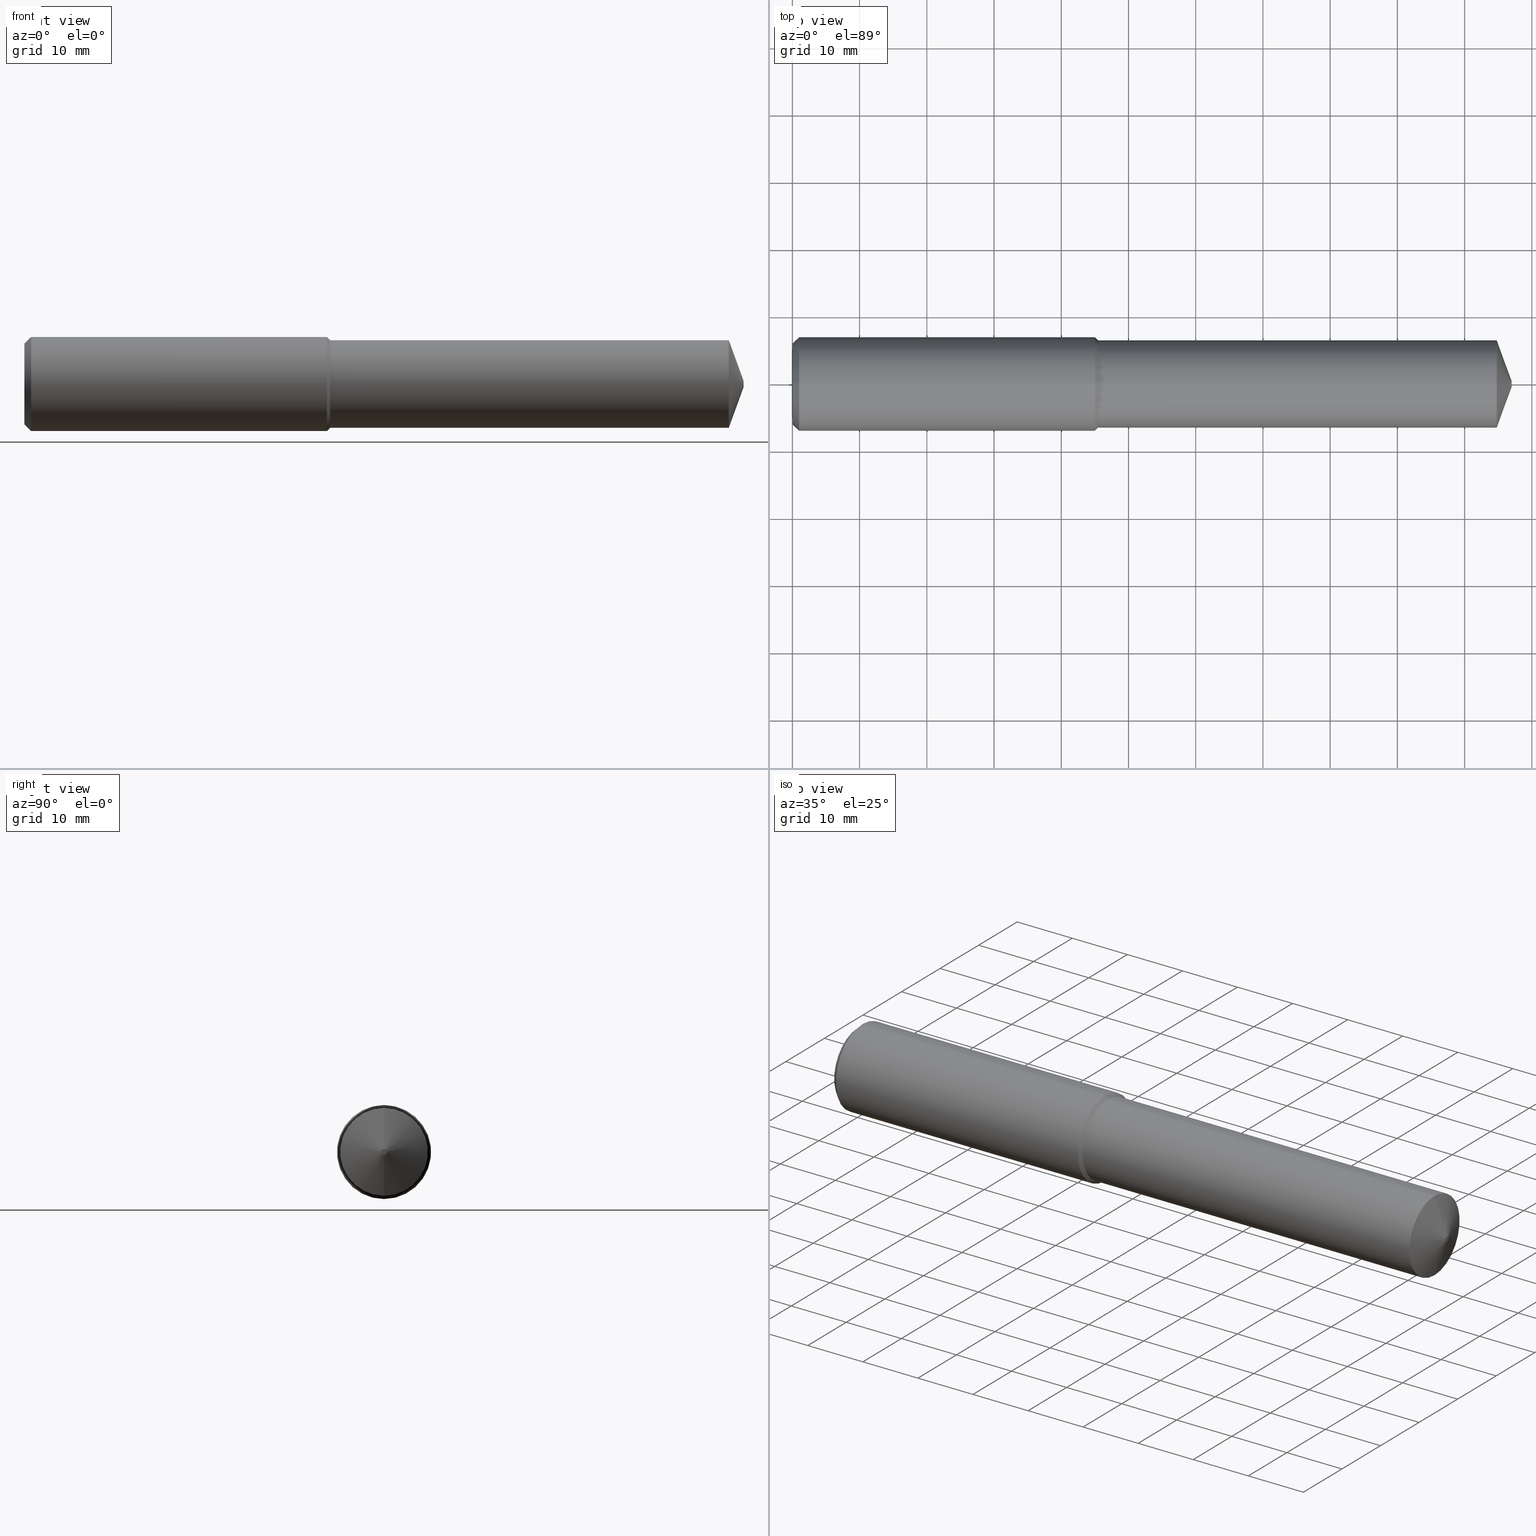
[diagram: canonical four-view strip — front | top / right | iso, engineering-drawing reading convention]
A machine part, canonical four-view strip (front | top / right | iso — engineering-drawing reading convention). The complete STEP part file that produces these views, byte-faithful:
ISO-10303-21;
HEADER;
FILE_DESCRIPTION (( 'STEP AP203' ),
    '1' );
FILE_NAME ('407020-DFX3-513A.STEP',
    '2024-10-03T14:28:50',
    ( '' ),
    ( '' ),
    'SwSTEP 2.0',
    'SolidWorks 2024',
    '' );
FILE_SCHEMA (( 'CONFIG_CONTROL_DESIGN' ));
ENDSEC;

DATA;
#1 = DIRECTION ( 'NONE',  ( 1.000000000000000000, -0.000000000000000000, -0.000000000000000000 ) ) ;
#2 = EDGE_CURVE ( 'NONE', #254, #260, #84, .T. ) ;
#3 = AXIS2_PLACEMENT_3D ( 'NONE', #208, #8, #236 ) ;
#4 = CARTESIAN_POINT ( 'NONE',  ( 0.03937007874015747977, 0.000000000000000000, 0.000000000000000000 ) ) ;
#5 = CIRCLE ( 'NONE', #148, 0.2755905511811025943 ) ;
#6 = FACE_OUTER_BOUND ( 'NONE', #287, .T. ) ;
#7 = CIRCLE ( 'NONE', #61, 0.2362204724409449341 ) ;
#8 = DIRECTION ( 'NONE',  ( -1.000000000000000000, 0.000000000000000000, 0.000000000000000000 ) ) ;
#9 = APPROVAL ( #107, 'UNSPECIFIED' ) ;
#10 = DIRECTION ( 'NONE',  ( -1.000000000000000000, 0.000000000000000000, 0.000000000000000000 ) ) ;
#11 = CARTESIAN_POINT ( 'NONE',  ( 1.790744094488189164, 0.000000000000000000, -0.2565000000000002278 ) ) ;
#12 = ADVANCED_FACE ( 'NONE', ( #172 ), #17, .T. ) ;
#13 = CIRCLE ( 'NONE', #285, 0.2755905511811023723 ) ;
#14 = AXIS2_PLACEMENT_3D ( 'NONE', #243, #369, #240 ) ;
#15 = DIRECTION ( 'NONE',  ( 0.000000000000000000, 0.000000000000000000, -1.000000000000000000 ) ) ;
#16 = DIRECTION ( 'NONE',  ( 1.000000000000000000, -0.000000000000000000, -0.000000000000000000 ) ) ;
#17 = CONICAL_SURFACE ( 'NONE', #337, 0.2565000000000002278, 0.7853981633974447263 ) ;
#18 = UNCERTAINTY_MEASURE_WITH_UNIT (LENGTH_MEASURE( 1.000000000000000082E-05 ), #276, 'distance_accuracy_value', 'NONE');
#19 = CARTESIAN_POINT ( 'NONE',  ( 1.771653543307086576, 0.000000000000000000, 0.2755905511811025943 ) ) ;
#20 = DIRECTION ( 'NONE',  ( 0.000000000000000000, 0.000000000000000000, 1.000000000000000000 ) ) ;
#21 = ORIENTED_EDGE ( 'NONE', *, *, #118, .F. ) ;
#22 = COORDINATED_UNIVERSAL_TIME_OFFSET ( 8, 0, .BEHIND. ) ;
#23 = CARTESIAN_POINT ( 'NONE',  ( 0.000000000000000000, 0.000000000000000000, 0.000000000000000000 ) ) ;
#24 = CC_DESIGN_APPROVAL ( #9, ( #180 ) ) ;
#25 = ORIENTED_EDGE ( 'NONE', *, *, #258, .F. ) ;
#26 = APPROVAL_ROLE ( '' ) ;
#27 = ORIENTED_EDGE ( 'NONE', *, *, #300, .F. ) ;
#28 = ORIENTED_EDGE ( 'NONE', *, *, #355, .F. ) ;
#29 = ORIENTED_EDGE ( 'NONE', *, *, #258, .T. ) ;
#30 = EDGE_LOOP ( 'NONE', ( #25, #28, #324, #113 ) ) ;
#31 = CIRCLE ( 'NONE', #269, 0.2565000000000002278 ) ;
#32 = ADVANCED_FACE ( 'NONE', ( #263 ), #235, .T. ) ;
#33 = DATE_AND_TIME ( #328, #294 ) ;
#34 = CARTESIAN_POINT ( 'NONE',  ( 0.03937007874015747977, 3.375010863791918991E-17, 0.2755905511811023723 ) ) ;
#35 = CARTESIAN_POINT ( 'NONE',  ( -0.03808593750000075634, 0.000000000000000000, 0.000000000000000000 ) ) ;
#36 = CC_DESIGN_APPROVAL ( #141, ( #241 ) ) ;
#37 = DIRECTION ( 'NONE',  ( 1.000000000000000000, -0.000000000000000000, -0.000000000000000000 ) ) ;
#38 = CARTESIAN_POINT ( 'NONE',  ( 1.790744094488189164, 3.141219039812965114E-17, 0.2565000000000002278 ) ) ;
#39 = DIRECTION ( 'NONE',  ( -1.000000000000000000, 0.000000000000000000, 0.000000000000000000 ) ) ;
#40 = DIRECTION ( 'NONE',  ( 0.000000000000000000, 0.000000000000000000, -1.000000000000000000 ) ) ;
#41 = AXIS2_PLACEMENT_3D ( 'NONE', #361, #1, #178 ) ;
#42 = DIRECTION ( 'NONE',  ( 1.000000000000000000, -0.000000000000000000, -0.000000000000000000 ) ) ;
#43 = APPROVAL ( #194, 'UNSPECIFIED' ) ;
#44 = CARTESIAN_POINT ( 'NONE',  ( 4.212598425196850016, 0.000000000000000000, 0.01750000000000052208 ) ) ;
#45 = AXIS2_PLACEMENT_3D ( 'NONE', #262, #149, #64 ) ;
#46 = DIRECTION ( 'NONE',  ( -0.7071067811865500152, 0.000000000000000000, 0.7071067811865450192 ) ) ;
#47 = LINE ( 'NONE', #102, #223 ) ;
#48 = DATE_AND_TIME ( #310, #278 ) ;
#49 = VERTEX_POINT ( 'NONE', #206 ) ;
#50 = AXIS2_PLACEMENT_3D ( 'NONE', #293, #153, #238 ) ;
#51 = ORIENTED_EDGE ( 'NONE', *, *, #300, .T. ) ;
#52 = PERSON_AND_ORGANIZATION_ROLE ( 'creator' ) ;
#53 = VERTEX_POINT ( 'NONE', #34 ) ;
#54 = AXIS2_PLACEMENT_3D ( 'NONE', #213, #309, #74 ) ;
#55 = PERSON_AND_ORGANIZATION ( #333, #132 ) ;
#56 = DIRECTION ( 'NONE',  ( 0.7071067811865477948, 0.000000000000000000, -0.7071067811865472397 ) ) ;
#57 = CIRCLE ( 'NONE', #45, 0.2565000000000005054 ) ;
#58 = EDGE_LOOP ( 'NONE', ( #21, #352, #317, #140 ) ) ;
#59 = EDGE_CURVE ( 'NONE', #49, #168, #100, .T. ) ;
#60 = FACE_OUTER_BOUND ( 'NONE', #283, .T. ) ;
#61 = AXIS2_PLACEMENT_3D ( 'NONE', #189, #306, #268 ) ;
#62 = CARTESIAN_POINT ( 'NONE',  ( 1.790744094488189164, 3.141219039812963882E-17, -0.2565000000000002278 ) ) ;
#63 = LINE ( 'NONE', #237, #273 ) ;
#64 = DIRECTION ( 'NONE',  ( 0.000000000000000000, 0.000000000000000000, -1.000000000000000000 ) ) ;
#65 = DIRECTION ( 'NONE',  ( 1.000000000000000000, -0.000000000000000000, -0.000000000000000000 ) ) ;
#66 = CARTESIAN_POINT ( 'NONE',  ( 1.790744094488189164, 0.000000000000000000, 0.000000000000000000 ) ) ;
#67 = ADVANCED_FACE ( 'NONE', ( #360 ), #297, .T. ) ;
#68 = AXIS2_PLACEMENT_3D ( 'NONE', #23, #83, #166 ) ;
#69 = EDGE_CURVE ( 'NONE', #114, #49, #264, .T. ) ;
#70 = CARTESIAN_POINT ( 'NONE',  ( 4.268512490100411279E-18, 0.000000000000000000, 0.000000000000000000 ) ) ;
#71 = DIRECTION ( 'NONE',  ( 1.000000000000000000, -0.000000000000000000, -0.000000000000000000 ) ) ;
#72 = AXIS2_PLACEMENT_3D ( 'NONE', #75, #127, #20 ) ;
#73 = APPROVAL_PERSON_ORGANIZATION ( #55, #43, #200 ) ;
#74 = DIRECTION ( 'NONE',  ( 0.000000000000000000, 0.000000000000000000, 1.000000000000000000 ) ) ;
#75 = CARTESIAN_POINT ( 'NONE',  ( 4.212598425196850016, 0.000000000000000000, 0.000000000000000000 ) ) ;
#76 = EDGE_CURVE ( 'NONE', #257, #49, #202, .T. ) ;
#77 = CALENDAR_DATE ( 2024, 3, 10 ) ;
#78 = ORIENTED_EDGE ( 'NONE', *, *, #87, .F. ) ;
#79 = APPLICATION_PROTOCOL_DEFINITION ( 'international standard', 'config_control_design', 1994, #163 ) ;
#80 = ORIENTED_EDGE ( 'NONE', *, *, #325, .T. ) ;
#81 = PERSON_AND_ORGANIZATION ( #333, #132 ) ;
#82 = EDGE_LOOP ( 'NONE', ( #111, #174, #134, #350 ) ) ;
#83 = DIRECTION ( 'NONE',  ( 0.000000000000000000, 0.000000000000000000, 1.000000000000000000 ) ) ;
#84 = LINE ( 'NONE', #321, #207 ) ;
#85 = ORIENTED_EDGE ( 'NONE', *, *, #69, .T. ) ;
#86 = PERSON_AND_ORGANIZATION_ROLE ( 'design_supplier' ) ;
#87 = EDGE_CURVE ( 'NONE', #168, #49, #57, .T. ) ;
#88 = EDGE_LOOP ( 'NONE', ( #229, #51 ) ) ;
#89 = AXIS2_PLACEMENT_3D ( 'NONE', #151, #37, #94 ) ;
#90 = DIRECTION ( 'NONE',  ( 1.000000000000000000, -0.000000000000000000, -0.000000000000000000 ) ) ;
#91 = DIRECTION ( 'NONE',  ( 0.000000000000000000, 0.000000000000000000, -1.000000000000000000 ) ) ;
#92 = AXIS2_PLACEMENT_3D ( 'NONE', #183, #39, #233 ) ;
#93 = CARTESIAN_POINT ( 'NONE',  ( 4.212598425196850016, 0.000000000000000000, 0.01750000000000052208 ) ) ;
#94 = DIRECTION ( 'NONE',  ( 0.000000000000000000, 0.000000000000000000, -1.000000000000000000 ) ) ;
#95 = FACE_OUTER_BOUND ( 'NONE', #311, .T. ) ;
#96 = ADVANCED_FACE ( 'NONE', ( #205 ), #261, .T. ) ;
#97 = DIRECTION ( 'NONE',  ( 0.000000000000000000, 0.000000000000000000, -1.000000000000000000 ) ) ;
#98 = EDGE_CURVE ( 'NONE', #260, #231, #63, .T. ) ;
#99 = DIRECTION ( 'NONE',  ( 0.000000000000000000, 0.000000000000000000, -1.000000000000000000 ) ) ;
#100 = CIRCLE ( 'NONE', #89, 0.2565000000000005054 ) ;
#101 = FACE_OUTER_BOUND ( 'NONE', #82, .T. ) ;
#102 = CARTESIAN_POINT ( 'NONE',  ( -0.03808593750000075634, 0.000000000000000000, -0.2565000000000003944 ) ) ;
#103 = DIRECTION ( 'NONE',  ( 1.000000000000000000, -0.000000000000000000, -0.000000000000000000 ) ) ;
#104 = VECTOR ( 'NONE', #152, 39.37007874015748854 ) ;
#105 = APPLICATION_PROTOCOL_DEFINITION ( 'international standard', 'config_control_design', 1994, #126 ) ;
#106 = ORIENTED_EDGE ( 'NONE', *, *, #313, .F. ) ;
#107 = APPROVAL_STATUS ( 'not_yet_approved' ) ;
#108 = ORIENTED_EDGE ( 'NONE', *, *, #371, .T. ) ;
#109 = CC_DESIGN_PERSON_AND_ORGANIZATION_ASSIGNMENT ( #286, #224, ( #234 ) ) ;
#110 = APPROVAL_DATE_TIME ( #377, #141 ) ;
#111 = ORIENTED_EDGE ( 'NONE', *, *, #248, .T. ) ;
#112 =( LENGTH_UNIT ( ) NAMED_UNIT ( * ) SI_UNIT ( $, .METRE. ) );
#113 = ORIENTED_EDGE ( 'NONE', *, *, #59, .T. ) ;
#114 = VERTEX_POINT ( 'NONE', #38 ) ;
#115 = PERSON_AND_ORGANIZATION ( #333, #132 ) ;
#116 = ORIENTED_EDGE ( 'NONE', *, *, #98, .F. ) ;
#117 = DIRECTION ( 'NONE',  ( 1.000000000000000000, -0.000000000000000000, -0.000000000000000000 ) ) ;
#118 = EDGE_CURVE ( 'NONE', #345, #231, #357, .T. ) ;
#119 = DIRECTION ( 'NONE',  ( 1.000000000000000000, -0.000000000000000000, -0.000000000000000000 ) ) ;
#120 = DIRECTION ( 'NONE',  ( 0.000000000000000000, 0.000000000000000000, -1.000000000000000000 ) ) ;
#121 = CIRCLE ( 'NONE', #169, 0.2755905511811023723 ) ;
#122 = DIRECTION ( 'NONE',  ( 0.000000000000000000, 0.000000000000000000, -1.000000000000000000 ) ) ;
#123 = DIRECTION ( 'NONE',  ( 1.000000000000000000, -0.000000000000000000, -0.000000000000000000 ) ) ;
#124 = ADVANCED_FACE ( 'NONE', ( #6 ), #335, .T. ) ;
#125 = DIRECTION ( 'NONE',  ( 1.000000000000000000, -0.000000000000000000, -0.000000000000000000 ) ) ;
#126 = APPLICATION_CONTEXT ( 'configuration controlled 3d designs of mechanical parts and assemblies' ) ;
#127 = DIRECTION ( 'NONE',  ( -1.000000000000000000, 0.000000000000000000, 0.000000000000000000 ) ) ;
#128 = LINE ( 'NONE', #158, #329 ) ;
#129 = LINE ( 'NONE', #368, #156 ) ;
#130 = DIRECTION ( 'NONE',  ( 1.000000000000000000, -0.000000000000000000, -0.000000000000000000 ) ) ;
#131 = ORIENTED_EDGE ( 'NONE', *, *, #334, .T. ) ;
#132 = ORGANIZATION ( 'UNSPECIFIED', 'UNSPECIFIED', '' ) ;
#133 = EDGE_CURVE ( 'NONE', #345, #114, #214, .T. ) ;
#134 = ORIENTED_EDGE ( 'NONE', *, *, #203, .F. ) ;
#135 = EDGE_CURVE ( 'NONE', #289, #231, #303, .T. ) ;
#136 = AXIS2_PLACEMENT_3D ( 'NONE', #331, #65, #179 ) ;
#137 = CIRCLE ( 'NONE', #165, 0.01750000000000052208 ) ;
#138 = ORIENTED_EDGE ( 'NONE', *, *, #76, .F. ) ;
#139 = DATE_AND_TIME ( #77, #281 ) ;
#140 = ORIENTED_EDGE ( 'NONE', *, *, #135, .T. ) ;
#141 = APPROVAL ( #343, 'UNSPECIFIED' ) ;
#142 = CARTESIAN_POINT ( 'NONE',  ( 1.790744094488189164, 0.000000000000000000, 0.000000000000000000 ) ) ;
#143 = ADVANCED_FACE ( 'NONE', ( #95 ), #222, .T. ) ;
#144 = EDGE_LOOP ( 'NONE', ( #227, #85, #78, #373 ) ) ;
#145 = SHAPE_DEFINITION_REPRESENTATION ( #246, #290 ) ;
#146 = CARTESIAN_POINT ( 'NONE',  ( -0.03808593750000075634, 3.141219039812965731E-17, 0.2565000000000003944 ) ) ;
#147 = CLOSED_SHELL ( 'NONE', ( #232, #124, #143, #209, #212, #67, #32, #239, #184, #12, #96, #176 ) ) ;
#148 = AXIS2_PLACEMENT_3D ( 'NONE', #304, #42, #271 ) ;
#149 = DIRECTION ( 'NONE',  ( 1.000000000000000000, -0.000000000000000000, -0.000000000000000000 ) ) ;
#150 = APPROVAL_PERSON_ORGANIZATION ( #282, #141, #26 ) ;
#151 = CARTESIAN_POINT ( 'NONE',  ( 4.125609539207228948, 0.000000000000000000, 0.000000000000000000 ) ) ;
#152 = DIRECTION ( 'NONE',  ( -0.3420201433256671031, 0.000000000000000000, 0.9396926207859088720 ) ) ;
#153 = DIRECTION ( 'NONE',  ( 1.000000000000000000, 0.000000000000000000, -0.000000000000000000 ) ) ;
#154 = CARTESIAN_POINT ( 'NONE',  ( 4.268512490100411279E-18, 0.000000000000000000, -0.2362204724409449341 ) ) ;
#155 = CONICAL_SURFACE ( 'NONE', #188, 0.2755905511811023723, 0.7853981633974479459 ) ;
#156 = VECTOR ( 'NONE', #46, 39.37007874015748143 ) ;
#157 = VECTOR ( 'NONE', #244, 39.37007874015748143 ) ;
#158 = CARTESIAN_POINT ( 'NONE',  ( 4.212598425196850016, 2.143131898507931930E-18, -0.01750000000000052208 ) ) ;
#159 = FACE_OUTER_BOUND ( 'NONE', #30, .T. ) ;
#160 = CARTESIAN_POINT ( 'NONE',  ( -0.03808593750000075634, 3.375010863791919607E-17, 0.2755905511811024833 ) ) ;
#161 = COORDINATED_UNIVERSAL_TIME_OFFSET ( 8, 0, .BEHIND. ) ;
#162 = EDGE_CURVE ( 'NONE', #53, #260, #13, .T. ) ;
#163 = APPLICATION_CONTEXT ( 'configuration controlled 3d designs of mechanical parts and assemblies' ) ;
#164 = ORIENTED_EDGE ( 'NONE', *, *, #344, .T. ) ;
#165 = AXIS2_PLACEMENT_3D ( 'NONE', #215, #125, #187 ) ;
#166 = DIRECTION ( 'NONE',  ( 1.000000000000000000, 0.000000000000000000, 0.000000000000000000 ) ) ;
#167 = ORIENTED_EDGE ( 'NONE', *, *, #69, .F. ) ;
#168 = VERTEX_POINT ( 'NONE', #175 ) ;
#169 = AXIS2_PLACEMENT_3D ( 'NONE', #216, #342, #339 ) ;
#170 = PERSON_AND_ORGANIZATION ( #333, #132 ) ;
#171 = ORIENTED_EDGE ( 'NONE', *, *, #135, .F. ) ;
#172 = FACE_OUTER_BOUND ( 'NONE', #58, .T. ) ;
#173 = VECTOR ( 'NONE', #359, 39.37007874015748143 ) ;
#174 = ORIENTED_EDGE ( 'NONE', *, *, #267, .T. ) ;
#175 = CARTESIAN_POINT ( 'NONE',  ( 4.125609539207228948, 3.141219039812967579E-17, -0.2565000000000005054 ) ) ;
#176 = ADVANCED_FACE ( 'NONE', ( #60 ), #155, .T. ) ;
#177 = CC_DESIGN_DATE_AND_TIME_ASSIGNMENT ( #230, #351, ( #241 ) ) ;
#178 = DIRECTION ( 'NONE',  ( 0.000000000000000000, 0.000000000000000000, -1.000000000000000000 ) ) ;
#179 = DIRECTION ( 'NONE',  ( 0.000000000000000000, 0.000000000000000000, -1.000000000000000000 ) ) ;
#180 = PRODUCT_DEFINITION_FORMATION_WITH_SPECIFIED_SOURCE ( 'ANY', '', #367, .NOT_KNOWN. ) ;
#181 = MANIFOLD_SOLID_BREP ( 'Body', #147 ) ;
#182 = DIRECTION ( 'NONE',  ( 0.000000000000000000, 0.000000000000000000, 1.000000000000000000 ) ) ;
#183 = CARTESIAN_POINT ( 'NONE',  ( 1.790744094488189164, 0.000000000000000000, 0.000000000000000000 ) ) ;
#184 = ADVANCED_FACE ( 'NONE', ( #330 ), #295, .T. ) ;
#185 = CARTESIAN_POINT ( 'NONE',  ( 4.212598425196850016, 1.677766114831880656E-17, -0.01750000000000052208 ) ) ;
#186 = APPROVAL_PERSON_ORGANIZATION ( #115, #9, #320 ) ;
#187 = DIRECTION ( 'NONE',  ( 0.000000000000000000, 0.000000000000000000, -1.000000000000000000 ) ) ;
#188 = AXIS2_PLACEMENT_3D ( 'NONE', #4, #119, #91 ) ;
#189 = CARTESIAN_POINT ( 'NONE',  ( 4.268512490100411279E-18, 0.000000000000000000, 0.000000000000000000 ) ) ;
#190 = CARTESIAN_POINT ( 'NONE',  ( 0.03937007874015747977, 0.000000000000000000, -0.2755905511811023723 ) ) ;
#191 = FACE_OUTER_BOUND ( 'NONE', #144, .T. ) ;
#192 = SECURITY_CLASSIFICATION_LEVEL ( 'unclassified' ) ;
#193 = EDGE_LOOP ( 'NONE', ( #167, #376, #80, #354 ) ) ;
#194 = APPROVAL_STATUS ( 'not_yet_approved' ) ;
#195 = VERTEX_POINT ( 'NONE', #219 ) ;
#196 = LOCAL_TIME ( 7, 28, 50.00000000000000000, #161 ) ;
#197 = VERTEX_POINT ( 'NONE', #185 ) ;
#198 = ORIENTED_EDGE ( 'NONE', *, *, #248, .F. ) ;
#199 = EDGE_LOOP ( 'NONE', ( #27, #29, #353, #138 ) ) ;
#200 = APPROVAL_ROLE ( '' ) ;
#201 = ORIENTED_EDGE ( 'NONE', *, *, #371, .F. ) ;
#202 = LINE ( 'NONE', #93, #104 ) ;
#203 = EDGE_CURVE ( 'NONE', #260, #53, #121, .T. ) ;
#204 = AXIS2_PLACEMENT_3D ( 'NONE', #363, #242, #338 ) ;
#205 = FACE_OUTER_BOUND ( 'NONE', #256, .T. ) ;
#206 = CARTESIAN_POINT ( 'NONE',  ( 4.125609539207228948, 0.000000000000000000, 0.2565000000000005054 ) ) ;
#207 = VECTOR ( 'NONE', #56, 39.37007874015748143 ) ;
#208 = CARTESIAN_POINT ( 'NONE',  ( 1.186075246418301222E-18, 0.2362204724409449341, 0.000000000000000000 ) ) ;
#209 = ADVANCED_FACE ( 'NONE', ( #191 ), #366, .T. ) ;
#210 = COORDINATED_UNIVERSAL_TIME_OFFSET ( 8, 0, .BEHIND. ) ;
#211 = CARTESIAN_POINT ( 'NONE',  ( -0.03808593750000075634, 0.000000000000000000, 0.000000000000000000 ) ) ;
#212 = ADVANCED_FACE ( 'NONE', ( #218 ), #253, .T. ) ;
#213 = CARTESIAN_POINT ( 'NONE',  ( 4.212598425196850016, 0.000000000000000000, 0.000000000000000000 ) ) ;
#214 = CIRCLE ( 'NONE', #41, 0.2565000000000002278 ) ;
#215 = CARTESIAN_POINT ( 'NONE',  ( 4.212598425196850016, 0.000000000000000000, 0.000000000000000000 ) ) ;
#216 = CARTESIAN_POINT ( 'NONE',  ( 0.03937007874015747977, 0.000000000000000000, 0.000000000000000000 ) ) ;
#217 = CONICAL_SURFACE ( 'NONE', #54, 0.01750000000000052208, 1.221730476396032383 ) ;
#218 = FACE_OUTER_BOUND ( 'NONE', #199, .T. ) ;
#219 = CARTESIAN_POINT ( 'NONE',  ( 4.268512490100411279E-18, 3.133938659235352953E-17, 0.2362204724409449341 ) ) ;
#220 = PERSON_AND_ORGANIZATION ( #333, #132 ) ;
#221 = ORIENTED_EDGE ( 'NONE', *, *, #162, .F. ) ;
#222 = CONICAL_SURFACE ( 'NONE', #92, 0.2565000000000002278, 0.7853981633974447263 ) ;
#223 = VECTOR ( 'NONE', #341, 39.37007874015748143 ) ;
#224 = PERSON_AND_ORGANIZATION_ROLE ( 'classification_officer' ) ;
#225 = ORIENTED_EDGE ( 'NONE', *, *, #133, .F. ) ;
#226 = PERSON_AND_ORGANIZATION ( #333, #132 ) ;
#227 = ORIENTED_EDGE ( 'NONE', *, *, #133, .T. ) ;
#228 = ORIENTED_EDGE ( 'NONE', *, *, #203, .T. ) ;
#229 = ORIENTED_EDGE ( 'NONE', *, *, #355, .T. ) ;
#230 = DATE_AND_TIME ( #347, #296 ) ;
#231 = VERTEX_POINT ( 'NONE', #274 ) ;
#232 = ADVANCED_FACE ( 'NONE', ( #101 ), #340, .T. ) ;
#233 = DIRECTION ( 'NONE',  ( 0.000000000000000000, 0.000000000000000000, 1.000000000000000000 ) ) ;
#234 = SECURITY_CLASSIFICATION ( '', '', #192 ) ;
#235 = PLANE ( 'NONE',  #50 ) ;
#236 = DIRECTION ( 'NONE',  ( 0.000000000000000000, 0.000000000000000000, 1.000000000000000000 ) ) ;
#237 = CARTESIAN_POINT ( 'NONE',  ( -0.03808593750000075634, 0.000000000000000000, -0.2755905511811024833 ) ) ;
#238 = DIRECTION ( 'NONE',  ( -0.000000000000000000, 0.000000000000000000, -1.000000000000000000 ) ) ;
#239 = ADVANCED_FACE ( 'NONE', ( #159 ), #217, .T. ) ;
#240 = DIRECTION ( 'NONE',  ( 0.000000000000000000, 0.000000000000000000, -1.000000000000000000 ) ) ;
#241 = PRODUCT_DEFINITION ( 'UNKNOWN', '', #180, #308 ) ;
#242 = DIRECTION ( 'NONE',  ( 1.000000000000000000, -0.000000000000000000, -0.000000000000000000 ) ) ;
#243 = CARTESIAN_POINT ( 'NONE',  ( 4.212598425196850016, 0.000000000000000000, 0.000000000000000000 ) ) ;
#244 = DIRECTION ( 'NONE',  ( 0.7071067811865477948, 8.659560562354929160E-17, 0.7071067811865472397 ) ) ;
#245 = CC_DESIGN_DATE_AND_TIME_ASSIGNMENT ( #48, #279, ( #234 ) ) ;
#246 = PRODUCT_DEFINITION_SHAPE ( 'NONE', 'NONE',  #241 ) ;
#247 = LENGTH_MEASURE_WITH_UNIT ( LENGTH_MEASURE( 0.02539999999999999897 ), #112 );
#248 = EDGE_CURVE ( 'NONE', #254, #195, #7, .T. ) ;
#249 = PERSON_AND_ORGANIZATION_ROLE ( 'creator' ) ;
#250 = ORIENTED_EDGE ( 'NONE', *, *, #344, .F. ) ;
#251 = AXIS2_PLACEMENT_3D ( 'NONE', #35, #103, #40 ) ;
#252 = CIRCLE ( 'NONE', #305, 0.2362204724409449341 ) ;
#253 = CONICAL_SURFACE ( 'NONE', #72, 0.01750000000000052208, 1.221730476396032383 ) ;
#254 = VERTEX_POINT ( 'NONE', #154 ) ;
#255 = COORDINATED_UNIVERSAL_TIME_OFFSET ( 8, 0, .BEHIND. ) ;
#256 = EDGE_LOOP ( 'NONE', ( #280, #378, #348, #171 ) ) ;
#257 = VERTEX_POINT ( 'NONE', #44 ) ;
#258 = EDGE_CURVE ( 'NONE', #197, #168, #128, .T. ) ;
#259 = APPROVAL_DATE_TIME ( #33, #43 ) ;
#260 = VERTEX_POINT ( 'NONE', #190 ) ;
#261 = CYLINDRICAL_SURFACE ( 'NONE', #265, 0.2755905511811024833 ) ;
#262 = CARTESIAN_POINT ( 'NONE',  ( 4.125609539207228948, 0.000000000000000000, 0.000000000000000000 ) ) ;
#263 = FACE_OUTER_BOUND ( 'NONE', #88, .T. ) ;
#264 = LINE ( 'NONE', #146, #173 ) ;
#265 = AXIS2_PLACEMENT_3D ( 'NONE', #211, #299, #122 ) ;
#266 = LINE ( 'NONE', #160, #327 ) ;
#267 = EDGE_CURVE ( 'NONE', #195, #53, #307, .T. ) ;
#268 = DIRECTION ( 'NONE',  ( 0.000000000000000000, 0.000000000000000000, -1.000000000000000000 ) ) ;
#269 = AXIS2_PLACEMENT_3D ( 'NONE', #66, #16, #15 ) ;
#270 = AXIS2_PLACEMENT_3D ( 'NONE', #275, #71, #97 ) ;
#271 = DIRECTION ( 'NONE',  ( 0.000000000000000000, 0.000000000000000000, -1.000000000000000000 ) ) ;
#272 = CC_DESIGN_APPROVAL ( #43, ( #234 ) ) ;
#273 = VECTOR ( 'NONE', #117, 39.37007874015748143 ) ;
#274 = CARTESIAN_POINT ( 'NONE',  ( 1.771653543307086576, 3.375010863791920840E-17, -0.2755905511811025943 ) ) ;
#275 = CARTESIAN_POINT ( 'NONE',  ( 0.03937007874015747977, 0.000000000000000000, 0.000000000000000000 ) ) ;
#276 =( CONVERSION_BASED_UNIT ( 'INCH', #247 ) LENGTH_UNIT ( ) NAMED_UNIT ( #358 ) );
#277 = EDGE_CURVE ( 'NONE', #114, #345, #31, .T. ) ;
#278 = LOCAL_TIME ( 7, 28, 50.00000000000000000, #255 ) ;
#279 = DATE_TIME_ROLE ( 'classification_date' ) ;
#280 = ORIENTED_EDGE ( 'NONE', *, *, #334, .F. ) ;
#281 = LOCAL_TIME ( 7, 28, 50.00000000000000000, #22 ) ;
#282 = PERSON_AND_ORGANIZATION ( #333, #132 ) ;
#283 = EDGE_LOOP ( 'NONE', ( #375, #164, #322, #221 ) ) ;
#284 = PRODUCT_RELATED_PRODUCT_CATEGORY ( 'detail', '', ( #367 ) ) ;
#285 = AXIS2_PLACEMENT_3D ( 'NONE', #356, #90, #326 ) ;
#286 = PERSON_AND_ORGANIZATION ( #333, #132 ) ;
#287 = EDGE_LOOP ( 'NONE', ( #228, #131, #201, #116 ) ) ;
#288 =( NAMED_UNIT ( * ) SI_UNIT ( $, .STERADIAN. ) SOLID_ANGLE_UNIT ( ) );
#289 = VERTEX_POINT ( 'NONE', #19 ) ;
#290 = ADVANCED_BREP_SHAPE_REPRESENTATION ( '407020-DFX3-513A', ( #181, #68 ), #365 ) ;
#291 = ORIENTED_EDGE ( 'NONE', *, *, #118, .T. ) ;
#292 = CIRCLE ( 'NONE', #14, 0.01750000000000052208 ) ;
#293 = CARTESIAN_POINT ( 'NONE',  ( 4.212598425196850016, 0.000000000000000000, 0.000000000000000000 ) ) ;
#294 = LOCAL_TIME ( 7, 28, 50.00000000000000000, #210 ) ;
#295 = CYLINDRICAL_SURFACE ( 'NONE', #251, 0.2565000000000003944 ) ;
#296 = LOCAL_TIME ( 7, 28, 50.00000000000000000, #349 ) ;
#297 = PLANE ( 'NONE',  #3 ) ;
#298 = CARTESIAN_POINT ( 'NONE',  ( -0.03808593750000075634, 0.000000000000000000, 0.000000000000000000 ) ) ;
#299 = DIRECTION ( 'NONE',  ( 1.000000000000000000, -0.000000000000000000, -0.000000000000000000 ) ) ;
#300 = EDGE_CURVE ( 'NONE', #197, #257, #292, .T. ) ;
#301 = CC_DESIGN_PERSON_AND_ORGANIZATION_ASSIGNMENT ( #81, #52, ( #180 ) ) ;
#302 = CARTESIAN_POINT ( 'NONE',  ( 0.03937007874015747977, 3.375010863791918375E-17, 0.2755905511811023723 ) ) ;
#303 = CIRCLE ( 'NONE', #136, 0.2755905511811025943 ) ;
#304 = CARTESIAN_POINT ( 'NONE',  ( 1.771653543307086576, 0.000000000000000000, 0.000000000000000000 ) ) ;
#305 = AXIS2_PLACEMENT_3D ( 'NONE', #70, #364, #99 ) ;
#306 = DIRECTION ( 'NONE',  ( 1.000000000000000000, -0.000000000000000000, -0.000000000000000000 ) ) ;
#307 = LINE ( 'NONE', #302, #157 ) ;
#308 = DESIGN_CONTEXT ( 'detailed design', #163, 'design' ) ;
#309 = DIRECTION ( 'NONE',  ( -1.000000000000000000, 0.000000000000000000, 0.000000000000000000 ) ) ;
#310 = CALENDAR_DATE ( 2024, 3, 10 ) ;
#311 = EDGE_LOOP ( 'NONE', ( #225, #291, #108, #106 ) ) ;
#312 = CC_DESIGN_SECURITY_CLASSIFICATION ( #234, ( #180 ) ) ;
#313 = EDGE_CURVE ( 'NONE', #114, #289, #129, .T. ) ;
#314 = AXIS2_PLACEMENT_3D ( 'NONE', #298, #123, #120 ) ;
#315 = APPROVAL_DATE_TIME ( #139, #9 ) ;
#316 = CC_DESIGN_PERSON_AND_ORGANIZATION_ASSIGNMENT ( #220, #372, ( #367 ) ) ;
#317 = ORIENTED_EDGE ( 'NONE', *, *, #313, .T. ) ;
#318 = MECHANICAL_CONTEXT ( 'NONE', #126, 'mechanical' ) ;
#319 = EDGE_LOOP ( 'NONE', ( #198, #250 ) ) ;
#320 = APPROVAL_ROLE ( '' ) ;
#321 = CARTESIAN_POINT ( 'NONE',  ( 0.03937007874015747977, 0.000000000000000000, -0.2755905511811023723 ) ) ;
#322 = ORIENTED_EDGE ( 'NONE', *, *, #2, .T. ) ;
#323 = CALENDAR_DATE ( 2024, 3, 10 ) ;
#324 = ORIENTED_EDGE ( 'NONE', *, *, #76, .T. ) ;
#325 = EDGE_CURVE ( 'NONE', #345, #168, #47, .T. ) ;
#326 = DIRECTION ( 'NONE',  ( 0.000000000000000000, 0.000000000000000000, -1.000000000000000000 ) ) ;
#327 = VECTOR ( 'NONE', #130, 39.37007874015748143 ) ;
#328 = CALENDAR_DATE ( 2024, 3, 10 ) ;
#329 = VECTOR ( 'NONE', #336, 39.37007874015748854 ) ;
#330 = FACE_OUTER_BOUND ( 'NONE', #193, .T. ) ;
#331 = CARTESIAN_POINT ( 'NONE',  ( 1.771653543307086576, 0.000000000000000000, 0.000000000000000000 ) ) ;
#332 = DIRECTION ( 'NONE',  ( -0.7071067811865500152, 8.659560562354902043E-17, -0.7071067811865450192 ) ) ;
#333 = PERSON ( 'UNSPECIFIED', 'UNSPECIFIED', 'UNSPECIFIED', ('UNSPECIFIED'), ('UNSPECIFIED'), ('UNSPECIFIED') ) ;
#334 = EDGE_CURVE ( 'NONE', #53, #289, #266, .T. ) ;
#335 = CYLINDRICAL_SURFACE ( 'NONE', #314, 0.2755905511811024833 ) ;
#336 = DIRECTION ( 'NONE',  ( -0.3420201433256671031, 1.150791560227850763E-16, -0.9396926207859088720 ) ) ;
#337 = AXIS2_PLACEMENT_3D ( 'NONE', #142, #10, #182 ) ;
#338 = DIRECTION ( 'NONE',  ( 0.000000000000000000, 0.000000000000000000, -1.000000000000000000 ) ) ;
#339 = DIRECTION ( 'NONE',  ( 0.000000000000000000, 0.000000000000000000, -1.000000000000000000 ) ) ;
#340 = CONICAL_SURFACE ( 'NONE', #270, 0.2755905511811023723, 0.7853981633974479459 ) ;
#341 = DIRECTION ( 'NONE',  ( 1.000000000000000000, -0.000000000000000000, -0.000000000000000000 ) ) ;
#342 = DIRECTION ( 'NONE',  ( 1.000000000000000000, -0.000000000000000000, -0.000000000000000000 ) ) ;
#343 = APPROVAL_STATUS ( 'not_yet_approved' ) ;
#344 = EDGE_CURVE ( 'NONE', #195, #254, #252, .T. ) ;
#345 = VERTEX_POINT ( 'NONE', #11 ) ;
#346 = CC_DESIGN_PERSON_AND_ORGANIZATION_ASSIGNMENT ( #170, #86, ( #180 ) ) ;
#347 = CALENDAR_DATE ( 2024, 3, 10 ) ;
#348 = ORIENTED_EDGE ( 'NONE', *, *, #98, .T. ) ;
#349 = COORDINATED_UNIVERSAL_TIME_OFFSET ( 8, 0, .BEHIND. ) ;
#350 = ORIENTED_EDGE ( 'NONE', *, *, #2, .F. ) ;
#351 = DATE_TIME_ROLE ( 'creation_date' ) ;
#352 = ORIENTED_EDGE ( 'NONE', *, *, #277, .F. ) ;
#353 = ORIENTED_EDGE ( 'NONE', *, *, #87, .T. ) ;
#354 = ORIENTED_EDGE ( 'NONE', *, *, #59, .F. ) ;
#355 = EDGE_CURVE ( 'NONE', #257, #197, #137, .T. ) ;
#356 = CARTESIAN_POINT ( 'NONE',  ( 0.03937007874015747977, 0.000000000000000000, 0.000000000000000000 ) ) ;
#357 = LINE ( 'NONE', #62, #370 ) ;
#358 = DIMENSIONAL_EXPONENTS ( 1.000000000000000000, 0.000000000000000000, 0.000000000000000000, 0.000000000000000000, 0.000000000000000000, 0.000000000000000000, 0.000000000000000000 ) ;
#359 = DIRECTION ( 'NONE',  ( 1.000000000000000000, -0.000000000000000000, -0.000000000000000000 ) ) ;
#360 = FACE_OUTER_BOUND ( 'NONE', #319, .T. ) ;
#361 = CARTESIAN_POINT ( 'NONE',  ( 1.790744094488189164, 0.000000000000000000, 0.000000000000000000 ) ) ;
#362 = CC_DESIGN_PERSON_AND_ORGANIZATION_ASSIGNMENT ( #226, #249, ( #241 ) ) ;
#363 = CARTESIAN_POINT ( 'NONE',  ( -0.03808593750000075634, 0.000000000000000000, 0.000000000000000000 ) ) ;
#364 = DIRECTION ( 'NONE',  ( 1.000000000000000000, -0.000000000000000000, -0.000000000000000000 ) ) ;
#365 =( GEOMETRIC_REPRESENTATION_CONTEXT ( 3 ) GLOBAL_UNCERTAINTY_ASSIGNED_CONTEXT ( ( #18 ) ) GLOBAL_UNIT_ASSIGNED_CONTEXT ( ( #276, #374, #288 ) ) REPRESENTATION_CONTEXT ( 'NONE', 'WORKASPACE' ) );
#366 = CYLINDRICAL_SURFACE ( 'NONE', #204, 0.2565000000000003944 ) ;
#367 = PRODUCT ( '407020-DFX3-513A', '407020-DFX3-513A', '', ( #318 ) ) ;
#368 = CARTESIAN_POINT ( 'NONE',  ( 1.790744094488189164, 0.000000000000000000, 0.2565000000000002278 ) ) ;
#369 = DIRECTION ( 'NONE',  ( 1.000000000000000000, -0.000000000000000000, -0.000000000000000000 ) ) ;
#370 = VECTOR ( 'NONE', #332, 39.37007874015748143 ) ;
#371 = EDGE_CURVE ( 'NONE', #231, #289, #5, .T. ) ;
#372 = PERSON_AND_ORGANIZATION_ROLE ( 'design_owner' ) ;
#373 = ORIENTED_EDGE ( 'NONE', *, *, #325, .F. ) ;
#374 =( NAMED_UNIT ( * ) PLANE_ANGLE_UNIT ( ) SI_UNIT ( $, .RADIAN. ) );
#375 = ORIENTED_EDGE ( 'NONE', *, *, #267, .F. ) ;
#376 = ORIENTED_EDGE ( 'NONE', *, *, #277, .T. ) ;
#377 = DATE_AND_TIME ( #323, #196 ) ;
#378 = ORIENTED_EDGE ( 'NONE', *, *, #162, .T. ) ;
ENDSEC;
END-ISO-10303-21;
